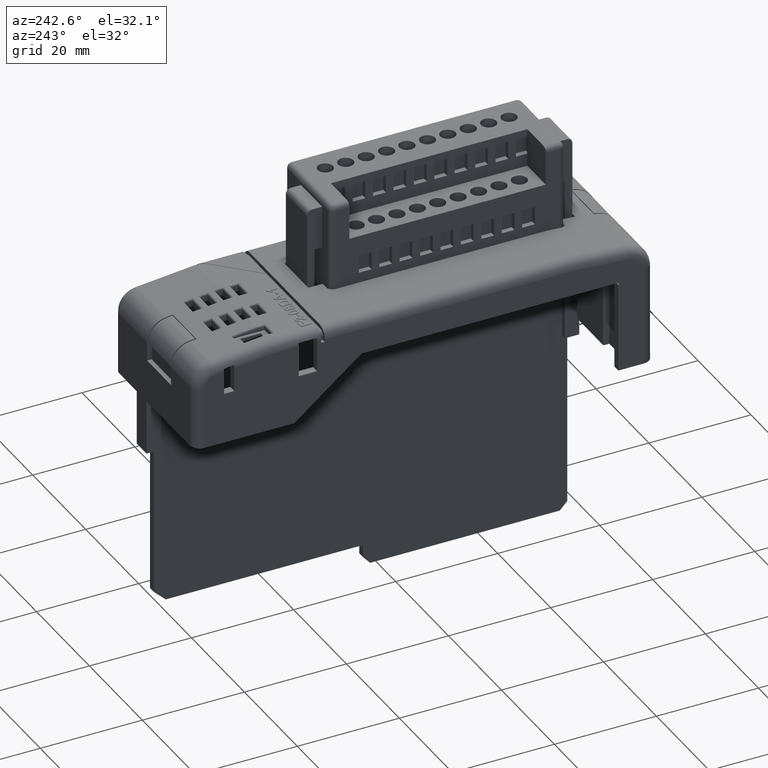
[diagram: clean part render]
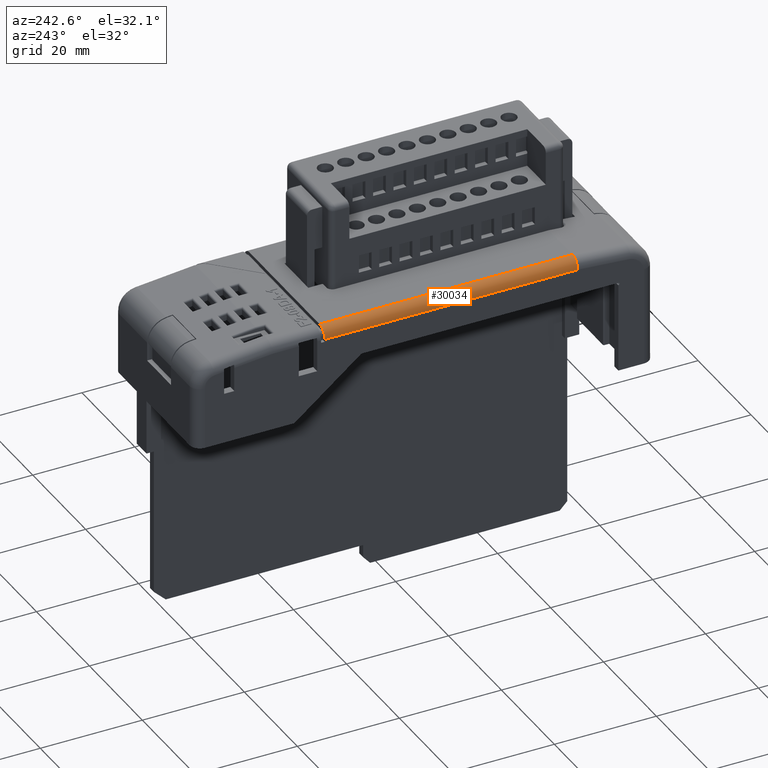
[diagram: same view with one face highlighted and labeled with its STEP entity id]
A machine part, auxiliary view. The second image highlights one B-rep face of the part: STEP entity #30034.
In plain terms, the highlighted cylindrical surface (edge-blend (fillet) strip) has radius 2 mm, axis along (0, -1, 0).
Its self-contained STEP definition (entity closure, byte-faithful):
#31 = EDGE_CURVE ( 'NONE', #29753, #5920, #13310, .T. ) ;
#5567 =( BOUNDED_CURVE ( )  B_SPLINE_CURVE ( 3, ( #5629, #5628, #5627, #5626 ),
 .UNSPECIFIED., .F., .T. ) 
 B_SPLINE_CURVE_WITH_KNOTS ( ( 4, 4 ),
 ( 4.712388980384689700, 6.283185307179588900 ),
 .UNSPECIFIED. ) 
 CURVE ( )  GEOMETRIC_REPRESENTATION_ITEM ( )  RATIONAL_B_SPLINE_CURVE ( ( 1.000000000000000000, 0.8047378541243643800, 0.8047378541243643800, 1.000000000000000000 ) ) 
 REPRESENTATION_ITEM ( '' )  );
#5604 = FACE_OUTER_BOUND ( 'NONE', #29967, .T. ) ;
#5605 = CARTESIAN_POINT ( 'NONE',  ( 0.5000000000000000000, 23.97447470938786700, 3.113725541639198900 ) ) ;
#5606 = CARTESIAN_POINT ( 'NONE',  ( 2.500000000000005800, 23.97447470938786700, 5.113725541639203300 ) ) ;
#5607 = DIRECTION ( 'NONE',  ( 0.0000000000000000000, 1.000000000000000000, -7.245885361707420800E-017 ) ) ;
#5608 = VECTOR ( 'NONE', #5607, 1000.000000000000000 ) ;
#5609 = CARTESIAN_POINT ( 'NONE',  ( 0.5000000000000000000, 34.26971755498956900, 3.113725541639194000 ) ) ;
#5610 = LINE ( 'NONE', #5609, #5608 ) ;
#5615 = CARTESIAN_POINT ( 'NONE',  ( 0.5000000000000000000, -25.50935379472779700, 3.113725541639198500 ) ) ;
#5626 = CARTESIAN_POINT ( 'NONE',  ( 2.500000000000005800, -25.58230153519504300, 5.113725541639198000 ) ) ;
#5627 = CARTESIAN_POINT ( 'NONE',  ( 1.328427124746192700, -25.58230153519500800, 5.113725541639202500 ) ) ;
#5628 = CARTESIAN_POINT ( 'NONE',  ( 0.4999999999999997800, -25.55208559174900500, 4.285298416893011700 ) ) ;
#5629 = CARTESIAN_POINT ( 'NONE',  ( 0.5000000000000000000, -25.50935379472779700, 3.113725541639198500 ) ) ;
#5633 = DIRECTION ( 'NONE',  ( 0.0000000000000000000, 0.0000000000000000000, 1.000000000000000000 ) ) ;
#5634 = DIRECTION ( 'NONE',  ( -0.0000000000000000000, -1.000000000000000000, 0.0000000000000000000 ) ) ;
#5635 = CARTESIAN_POINT ( 'NONE',  ( 2.500000000000000000, 23.97447470938787000, 3.113725541639194900 ) ) ;
#5636 = AXIS2_PLACEMENT_3D ( 'NONE', #5635, #5634, #5633 ) ;
#5637 = CIRCLE ( 'NONE', #5636, 2.000000000000000000 ) ;
#5642 = DIRECTION ( 'NONE',  ( 0.0000000000000000000, 0.0000000000000000000, -1.000000000000000000 ) ) ;
#5643 = DIRECTION ( 'NONE',  ( 0.0000000000000000000, -1.000000000000000000, 7.245885361707420800E-017 ) ) ;
#5644 = CARTESIAN_POINT ( 'NONE',  ( 2.500000000000000000, -35.25803190597711300, 3.113725541639198900 ) ) ;
#5645 = AXIS2_PLACEMENT_3D ( 'NONE', #5644, #5643, #5642 ) ;
#5646 = CYLINDRICAL_SURFACE ( 'NONE', #5645, 2.000000000000000000 ) ;
#5920 = VERTEX_POINT ( 'NONE', #13441 ) ;
#11503 = ORIENTED_EDGE ( 'NONE', *, *, #31, .F. ) ;
#13307 = DIRECTION ( 'NONE',  ( -0.0000000000000000000, -1.000000000000000000, 7.245885361707420800E-017 ) ) ;
#13308 = VECTOR ( 'NONE', #13307, 1000.000000000000000 ) ;
#13309 = CARTESIAN_POINT ( 'NONE',  ( 2.500000000000000000, -25.58230153519504300, 5.113725541639198000 ) ) ;
#13310 = LINE ( 'NONE', #13309, #13308 ) ;
#13441 = CARTESIAN_POINT ( 'NONE',  ( 2.500000000000005800, -25.58230153519504300, 5.113725541639198000 ) ) ;
#29473 = ORIENTED_EDGE ( 'NONE', *, *, #29475, .T. ) ;
#29475 = EDGE_CURVE ( 'NONE', #29557, #5920, #5567, .T. ) ;
#29557 = VERTEX_POINT ( 'NONE', #5615 ) ;
#29688 = ORIENTED_EDGE ( 'NONE', *, *, #29689, .F. ) ;
#29689 = EDGE_CURVE ( 'NONE', #29557, #29755, #5610, .T. ) ;
#29753 = VERTEX_POINT ( 'NONE', #5606 ) ;
#29755 = VERTEX_POINT ( 'NONE', #5605 ) ;
#29967 = EDGE_LOOP ( 'NONE', ( #30107, #29688, #29473, #11503 ) ) ;
#30034 = ADVANCED_FACE ( 'NONE', ( #5604 ), #5646, .T. ) ;
#30103 = EDGE_CURVE ( 'NONE', #29753, #29755, #5637, .T. ) ;
#30107 = ORIENTED_EDGE ( 'NONE', *, *, #30103, .T. ) ;